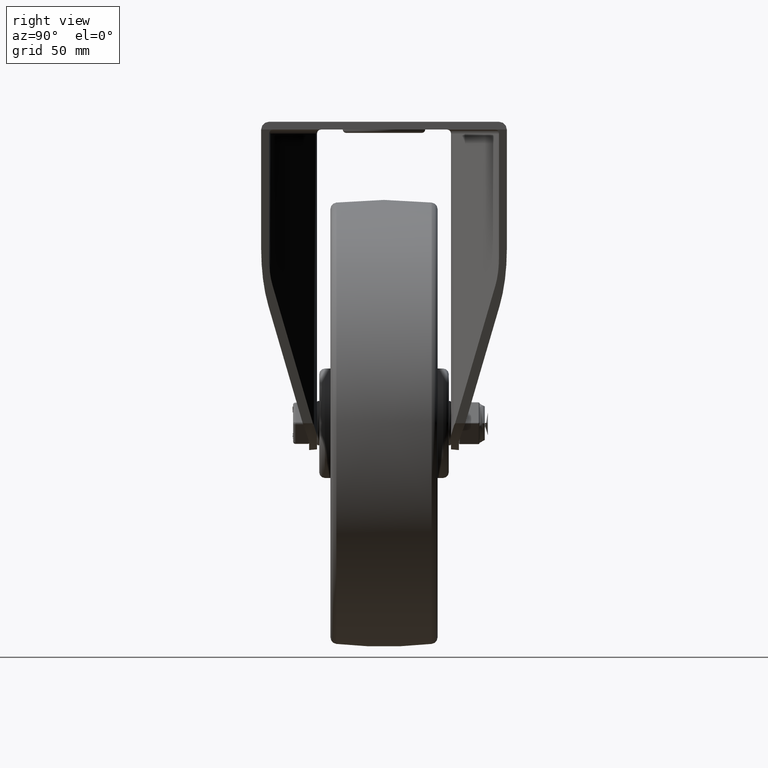
[diagram: clean part render]
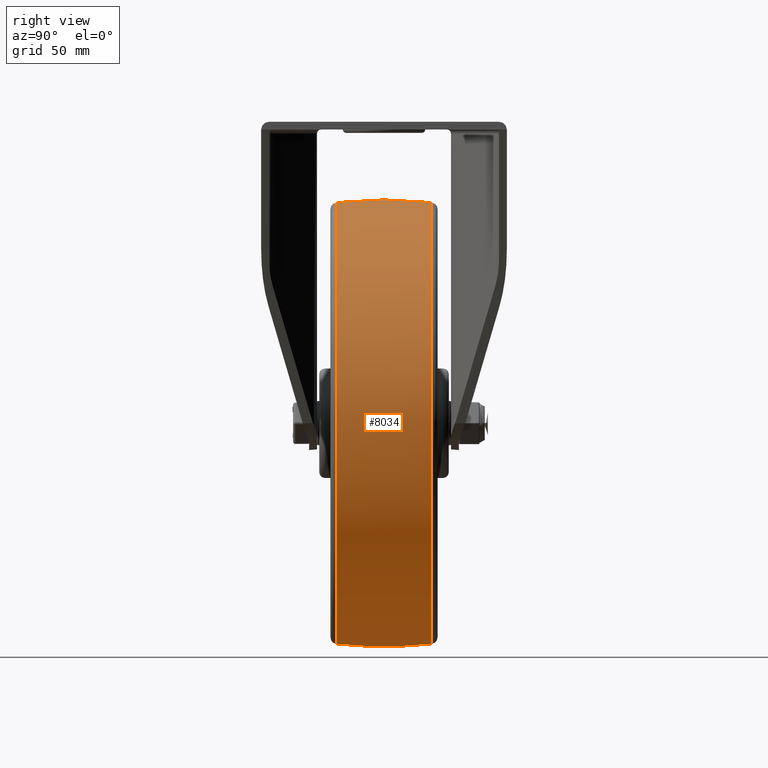
[diagram: same view with one face highlighted and labeled with its STEP entity id]
A machine part, right view. The second image highlights one B-rep face of the part: STEP entity #8034.
In plain terms, the highlighted face is a freeform B-spline surface patch.
Its self-contained STEP definition (entity closure, byte-faithful):
#37=(
BOUNDED_SURFACE()
B_SPLINE_SURFACE(2,2,((#12810,#12811,#12812,#12813,#12814,#12815,#12816,
#12817,#12818),(#12819,#12820,#12821,#12822,#12823,#12824,#12825,#12826,
#12827),(#12828,#12829,#12830,#12831,#12832,#12833,#12834,#12835,#12836)),
 .UNSPECIFIED.,.F.,.T.,.F.)
B_SPLINE_SURFACE_WITH_KNOTS((3,3),(3,2,2,2,3),(-0.110899114575321,0.110899114575325),
(-3.14159265358979,-1.5707963267949,0.,1.5707963267949,3.14159265358979),
 .UNSPECIFIED.)
GEOMETRIC_REPRESENTATION_ITEM()
RATIONAL_B_SPLINE_SURFACE(((1.,0.707106781186548,1.,0.707106781186548,1.,
0.707106781186548,1.,0.707106781186548,1.),(0.993856992939137,0.702763019236935,
0.993856992939137,0.702763019236935,0.993856992939137,0.702763019236935,
0.993856992939137,0.702763019236935,0.993856992939137),(1.,0.707106781186548,
1.,0.707106781186548,1.,0.707106781186548,1.,0.707106781186548,1.)))
REPRESENTATION_ITEM('')
SURFACE()
);
#899=FACE_OUTER_BOUND('',#1395,.T.);
#1395=EDGE_LOOP('',(#6090,#6091,#6092,#6093));
#3124=CIRCLE('',#8785,98.8159353890197);
#3125=CIRCLE('',#8786,192.749999999994);
#3126=CIRCLE('',#8787,98.8159353890198);
#3606=VERTEX_POINT('',#12807);
#3607=VERTEX_POINT('',#12837);
#4501=EDGE_CURVE('',#3606,#3606,#3124,.T.);
#4502=EDGE_CURVE('',#3606,#3607,#3125,.T.);
#4503=EDGE_CURVE('',#3607,#3607,#3126,.T.);
#6090=ORIENTED_EDGE('',*,*,#4501,.F.);
#6091=ORIENTED_EDGE('',*,*,#4502,.T.);
#6092=ORIENTED_EDGE('',*,*,#4503,.T.);
#6093=ORIENTED_EDGE('',*,*,#4502,.F.);
#8034=ADVANCED_FACE('',(#899),#37,.F.);
#8785=AXIS2_PLACEMENT_3D('',#12809,#10155,#10156);
#8786=AXIS2_PLACEMENT_3D('',#12838,#10157,#10158);
#8787=AXIS2_PLACEMENT_3D('',#12839,#10159,#10160);
#10155=DIRECTION('center_axis',(0.,1.,0.));
#10156=DIRECTION('ref_axis',(0.,0.,1.));
#10157=DIRECTION('center_axis',(-1.,0.,1.22464679914735E-16));
#10158=DIRECTION('ref_axis',(-1.22464679914735E-16,0.,-1.));
#10159=DIRECTION('center_axis',(0.,1.,0.));
#10160=DIRECTION('ref_axis',(0.,0.,1.));
#12807=CARTESIAN_POINT('',(1.21014618978915E-14,21.3320158102769,-98.8159353890197));
#12809=CARTESIAN_POINT('Origin',(0.,21.3320158102769,0.));
#12810=CARTESIAN_POINT('Ctrl Pts',(0.,-21.3320158102768,-98.8159353890202));
#12811=CARTESIAN_POINT('Ctrl Pts',(-98.8159353890202,-21.3320158102768,
-98.8159353890202));
#12812=CARTESIAN_POINT('Ctrl Pts',(-98.8159353890202,-21.3320158102768,
0.));
#12813=CARTESIAN_POINT('Ctrl Pts',(-98.8159353890202,-21.3320158102768,
98.8159353890202));
#12814=CARTESIAN_POINT('Ctrl Pts',(0.,-21.3320158102768,98.8159353890202));
#12815=CARTESIAN_POINT('Ctrl Pts',(98.8159353890202,-21.3320158102768,98.8159353890202));
#12816=CARTESIAN_POINT('Ctrl Pts',(98.8159353890202,-21.3320158102768,0.));
#12817=CARTESIAN_POINT('Ctrl Pts',(98.8159353890202,-21.3320158102768,-98.8159353890202));
#12818=CARTESIAN_POINT('Ctrl Pts',(0.,-21.3320158102768,-98.8159353890202));
#12819=CARTESIAN_POINT('Ctrl Pts',(0.,2.22044604925031E-13,-101.191383286924));
#12820=CARTESIAN_POINT('Ctrl Pts',(-101.191383286924,2.22044604925031E-13,
-101.191383286924));
#12821=CARTESIAN_POINT('Ctrl Pts',(-101.191383286924,2.22044604925031E-13,
0.));
#12822=CARTESIAN_POINT('Ctrl Pts',(-101.191383286924,2.22044604925031E-13,
101.191383286924));
#12823=CARTESIAN_POINT('Ctrl Pts',(0.,2.22044604925031E-13,101.191383286924));
#12824=CARTESIAN_POINT('Ctrl Pts',(101.191383286924,2.22044604925031E-13,
101.191383286924));
#12825=CARTESIAN_POINT('Ctrl Pts',(101.191383286924,2.22044604925031E-13,
0.));
#12826=CARTESIAN_POINT('Ctrl Pts',(101.191383286924,2.22044604925031E-13,
-101.191383286924));
#12827=CARTESIAN_POINT('Ctrl Pts',(0.,2.22044604925031E-13,-101.191383286924));
#12828=CARTESIAN_POINT('Ctrl Pts',(0.,21.3320158102769,-98.8159353890201));
#12829=CARTESIAN_POINT('Ctrl Pts',(-98.8159353890201,21.3320158102769,-98.8159353890201));
#12830=CARTESIAN_POINT('Ctrl Pts',(-98.8159353890201,21.3320158102769,0.));
#12831=CARTESIAN_POINT('Ctrl Pts',(-98.8159353890201,21.3320158102769,98.8159353890201));
#12832=CARTESIAN_POINT('Ctrl Pts',(0.,21.3320158102769,98.8159353890201));
#12833=CARTESIAN_POINT('Ctrl Pts',(98.8159353890201,21.3320158102769,98.8159353890201));
#12834=CARTESIAN_POINT('Ctrl Pts',(98.8159353890201,21.3320158102769,0.));
#12835=CARTESIAN_POINT('Ctrl Pts',(98.8159353890201,21.3320158102769,-98.8159353890201));
#12836=CARTESIAN_POINT('Ctrl Pts',(0.,21.3320158102769,-98.8159353890201));
#12837=CARTESIAN_POINT('',(1.21014618978915E-14,-21.3320158102768,-98.8159353890198));
#12838=CARTESIAN_POINT('Origin',(1.13585990620909E-14,-3.59304599961683E-13,
92.7499999999936));
#12839=CARTESIAN_POINT('Origin',(0.,-21.3320158102768,0.));